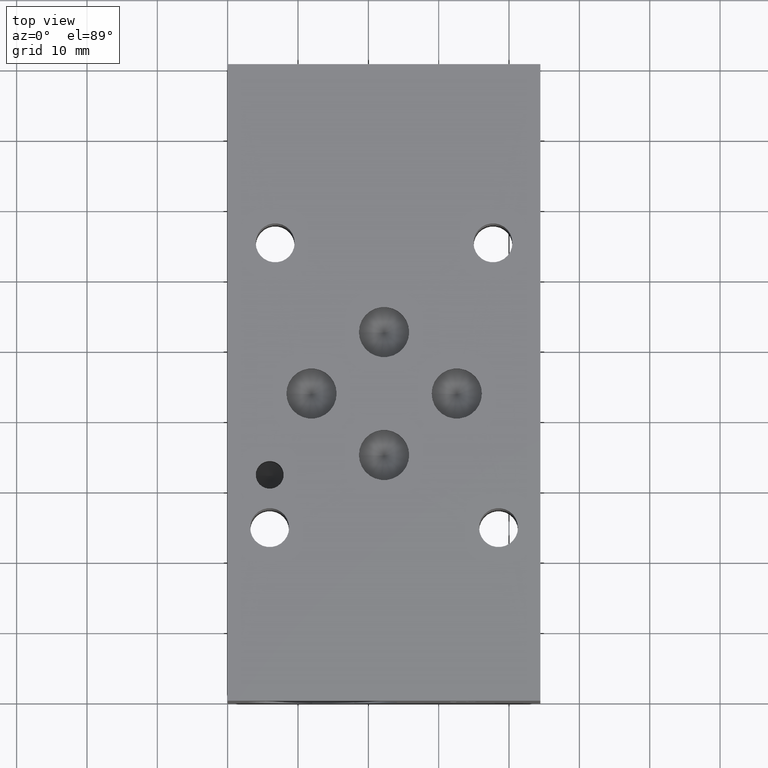
[diagram: clean part render]
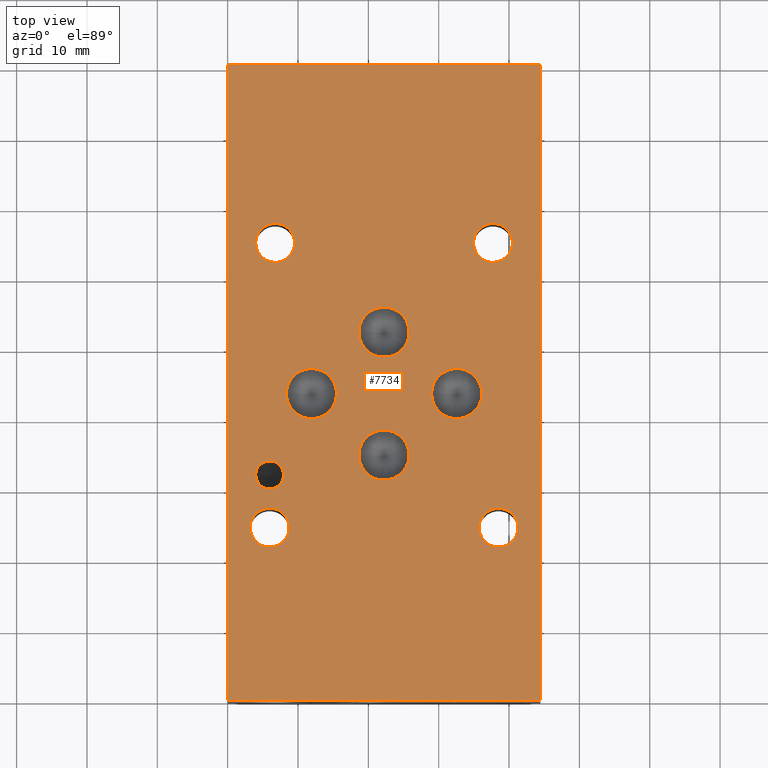
[diagram: same view with one face highlighted and labeled with its STEP entity id]
A machine part, top view. The second image highlights one B-rep face of the part: STEP entity #7734.
In plain terms, the highlighted planar face has unit normal (0, 0, 1).
Its self-contained STEP definition (entity closure, byte-faithful):
#102=CIRCLE('',#8089,2.7686);
#104=CIRCLE('',#8092,2.7686);
#106=CIRCLE('',#8095,2.7686);
#108=CIRCLE('',#8098,2.7686);
#111=CIRCLE('',#8103,3.5687);
#113=CIRCLE('',#8107,3.5687);
#115=CIRCLE('',#8111,3.5687);
#117=CIRCLE('',#8115,3.5687);
#119=CIRCLE('',#8119,1.9812);
#162=FACE_BOUND('',#1282,.T.);
#163=FACE_BOUND('',#1283,.T.);
#164=FACE_BOUND('',#1284,.T.);
#165=FACE_BOUND('',#1285,.T.);
#166=FACE_BOUND('',#1286,.T.);
#167=FACE_BOUND('',#1287,.T.);
#168=FACE_BOUND('',#1288,.T.);
#169=FACE_BOUND('',#1289,.T.);
#170=FACE_BOUND('',#1290,.T.);
#839=FACE_OUTER_BOUND('',#1281,.T.);
#1281=EDGE_LOOP('',(#6713,#6714,#6715,#6716));
#1282=EDGE_LOOP('',(#6717));
#1283=EDGE_LOOP('',(#6718));
#1284=EDGE_LOOP('',(#6719));
#1285=EDGE_LOOP('',(#6720));
#1286=EDGE_LOOP('',(#6721));
#1287=EDGE_LOOP('',(#6722));
#1288=EDGE_LOOP('',(#6723));
#1289=EDGE_LOOP('',(#6724));
#1290=EDGE_LOOP('',(#6725));
#1620=LINE('',#11541,#2428);
#2056=LINE('',#12703,#2864);
#2105=LINE('',#12943,#2913);
#2108=LINE('',#12947,#2916);
#2428=VECTOR('',#8633,10.);
#2864=VECTOR('',#9385,10.);
#2913=VECTOR('',#9668,10.);
#2916=VECTOR('',#9673,10.);
#3225=VERTEX_POINT('',#11538);
#3226=VERTEX_POINT('',#11540);
#3538=VERTEX_POINT('',#12702);
#3588=VERTEX_POINT('',#12871);
#3590=VERTEX_POINT('',#12877);
#3592=VERTEX_POINT('',#12883);
#3594=VERTEX_POINT('',#12889);
#3598=VERTEX_POINT('',#12900);
#3601=VERTEX_POINT('',#12909);
#3604=VERTEX_POINT('',#12918);
#3607=VERTEX_POINT('',#12927);
#3610=VERTEX_POINT('',#12936);
#3612=VERTEX_POINT('',#12942);
#4074=EDGE_CURVE('',#3226,#3225,#1620,.T.);
#4542=EDGE_CURVE('',#3538,#3226,#2056,.T.);
#4618=EDGE_CURVE('',#3588,#3588,#102,.T.);
#4621=EDGE_CURVE('',#3590,#3590,#104,.T.);
#4624=EDGE_CURVE('',#3592,#3592,#106,.T.);
#4627=EDGE_CURVE('',#3594,#3594,#108,.T.);
#4632=EDGE_CURVE('',#3598,#3598,#111,.T.);
#4636=EDGE_CURVE('',#3601,#3601,#113,.T.);
#4640=EDGE_CURVE('',#3604,#3604,#115,.T.);
#4644=EDGE_CURVE('',#3607,#3607,#117,.T.);
#4648=EDGE_CURVE('',#3610,#3610,#119,.T.);
#4651=EDGE_CURVE('',#3612,#3538,#2105,.T.);
#4654=EDGE_CURVE('',#3225,#3612,#2108,.T.);
#6713=ORIENTED_EDGE('',*,*,#4542,.T.);
#6714=ORIENTED_EDGE('',*,*,#4074,.T.);
#6715=ORIENTED_EDGE('',*,*,#4654,.T.);
#6716=ORIENTED_EDGE('',*,*,#4651,.T.);
#6717=ORIENTED_EDGE('',*,*,#4618,.T.);
#6718=ORIENTED_EDGE('',*,*,#4621,.T.);
#6719=ORIENTED_EDGE('',*,*,#4624,.T.);
#6720=ORIENTED_EDGE('',*,*,#4627,.T.);
#6721=ORIENTED_EDGE('',*,*,#4632,.T.);
#6722=ORIENTED_EDGE('',*,*,#4636,.T.);
#6723=ORIENTED_EDGE('',*,*,#4640,.T.);
#6724=ORIENTED_EDGE('',*,*,#4644,.T.);
#6725=ORIENTED_EDGE('',*,*,#4648,.T.);
#7004=PLANE('',#8124);
#7734=ADVANCED_FACE('',(#839,#162,#163,#164,#165,#166,#167,#168,#169,#170),
#7004,.T.);
#8089=AXIS2_PLACEMENT_3D('',#12872,#9589,#9590);
#8092=AXIS2_PLACEMENT_3D('',#12878,#9596,#9597);
#8095=AXIS2_PLACEMENT_3D('',#12884,#9603,#9604);
#8098=AXIS2_PLACEMENT_3D('',#12890,#9610,#9611);
#8103=AXIS2_PLACEMENT_3D('',#12901,#9622,#9623);
#8107=AXIS2_PLACEMENT_3D('',#12910,#9632,#9633);
#8111=AXIS2_PLACEMENT_3D('',#12919,#9642,#9643);
#8115=AXIS2_PLACEMENT_3D('',#12928,#9652,#9653);
#8119=AXIS2_PLACEMENT_3D('',#12937,#9662,#9663);
#8124=AXIS2_PLACEMENT_3D('',#12950,#9678,#9679);
#8633=DIRECTION('',(0.,1.,0.));
#9385=DIRECTION('',(1.,0.,0.));
#9589=DIRECTION('center_axis',(0.,0.,-1.));
#9590=DIRECTION('ref_axis',(1.,0.,0.));
#9596=DIRECTION('center_axis',(0.,0.,-1.));
#9597=DIRECTION('ref_axis',(1.,0.,0.));
#9603=DIRECTION('center_axis',(0.,0.,-1.));
#9604=DIRECTION('ref_axis',(1.,0.,0.));
#9610=DIRECTION('center_axis',(0.,0.,-1.));
#9611=DIRECTION('ref_axis',(1.,0.,0.));
#9622=DIRECTION('center_axis',(0.,0.,-1.));
#9623=DIRECTION('ref_axis',(1.,0.,0.));
#9632=DIRECTION('center_axis',(0.,0.,-1.));
#9633=DIRECTION('ref_axis',(1.,0.,0.));
#9642=DIRECTION('center_axis',(0.,0.,-1.));
#9643=DIRECTION('ref_axis',(1.,0.,0.));
#9652=DIRECTION('center_axis',(0.,0.,-1.));
#9653=DIRECTION('ref_axis',(1.,0.,0.));
#9662=DIRECTION('center_axis',(0.,0.,-1.));
#9663=DIRECTION('ref_axis',(1.,0.,0.));
#9668=DIRECTION('',(0.,-1.,0.));
#9673=DIRECTION('',(-1.,0.,0.));
#9678=DIRECTION('center_axis',(0.,0.,1.));
#9679=DIRECTION('ref_axis',(1.,0.,0.));
#11538=CARTESIAN_POINT('',(44.45,90.5002,25.4));
#11540=CARTESIAN_POINT('',(44.45,0.,25.4));
#11541=CARTESIAN_POINT('',(44.45,0.,25.4));
#12702=CARTESIAN_POINT('',(0.,0.,25.4));
#12703=CARTESIAN_POINT('',(0.,0.,25.4));
#12871=CARTESIAN_POINT('',(3.9878,65.1002,25.4));
#12872=CARTESIAN_POINT('Origin',(6.7564,65.1002,25.4));
#12877=CARTESIAN_POINT('',(3.2004,24.6126,25.4));
#12878=CARTESIAN_POINT('Origin',(5.969,24.6126,25.4));
#12883=CARTESIAN_POINT('',(35.7378,24.6126,25.4));
#12884=CARTESIAN_POINT('Origin',(38.5064,24.6126,25.4));
#12889=CARTESIAN_POINT('',(34.9504,65.1002,25.4));
#12890=CARTESIAN_POINT('Origin',(37.719,65.1002,25.4));
#12900=CARTESIAN_POINT('',(18.6563,52.4002,25.4));
#12901=CARTESIAN_POINT('Origin',(22.225,52.4002,25.4));
#12909=CARTESIAN_POINT('',(8.3439,43.6626,25.4));
#12910=CARTESIAN_POINT('Origin',(11.9126,43.6626,25.4));
#12918=CARTESIAN_POINT('',(28.9941,43.6626,25.4));
#12919=CARTESIAN_POINT('Origin',(32.5628,43.6626,25.4));
#12927=CARTESIAN_POINT('',(18.6563,34.925,25.4));
#12928=CARTESIAN_POINT('Origin',(22.225,34.925,25.4));
#12936=CARTESIAN_POINT('',(3.9878,32.1056,25.4));
#12937=CARTESIAN_POINT('Origin',(5.969,32.1056,25.4));
#12942=CARTESIAN_POINT('',(0.,90.5002,25.4));
#12943=CARTESIAN_POINT('',(0.,90.5002,25.4));
#12947=CARTESIAN_POINT('',(44.45,90.5002,25.4));
#12950=CARTESIAN_POINT('Origin',(22.225,45.2501,25.4));